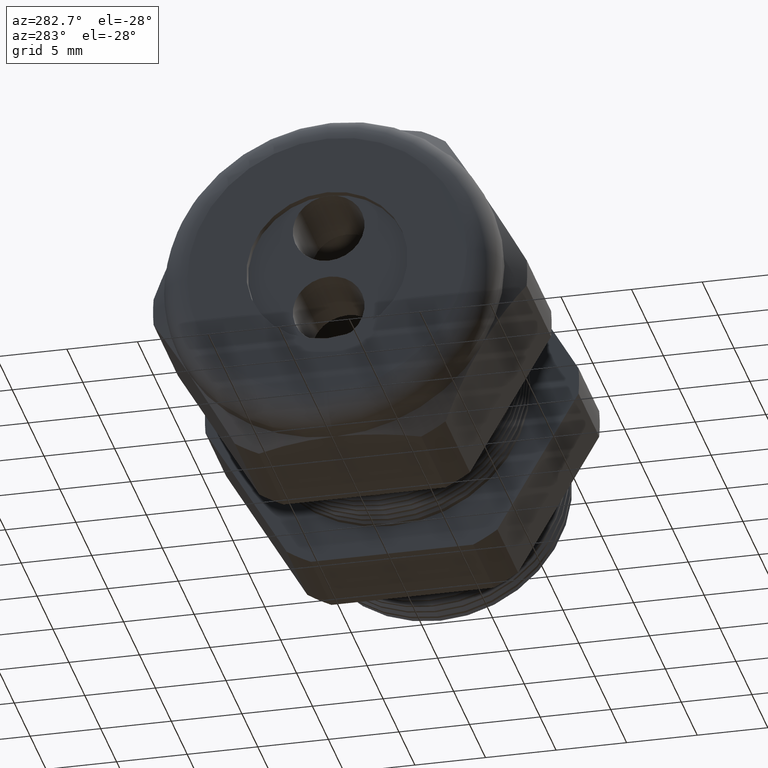
[diagram: clean part render]
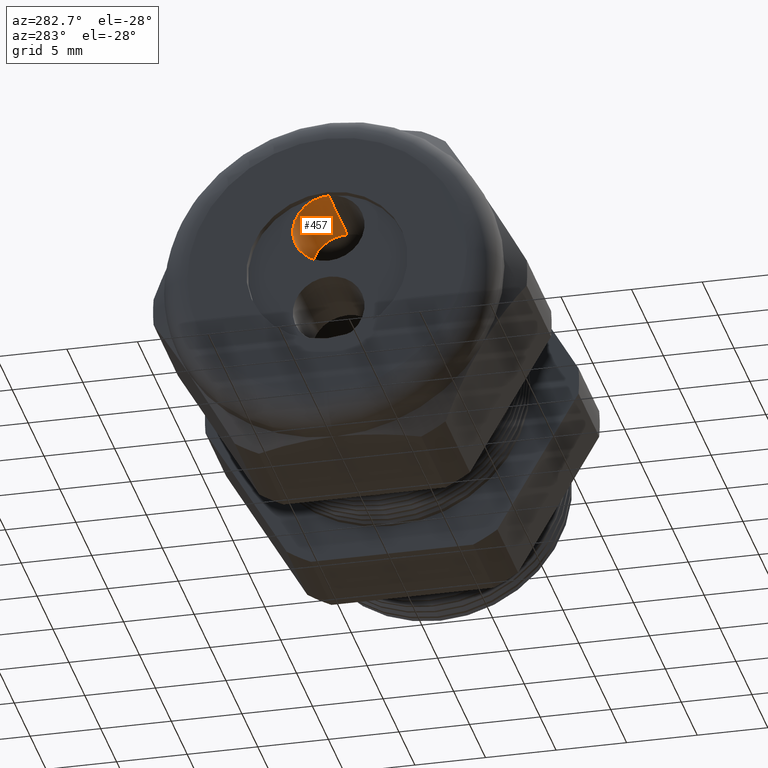
[diagram: same view with one face highlighted and labeled with its STEP entity id]
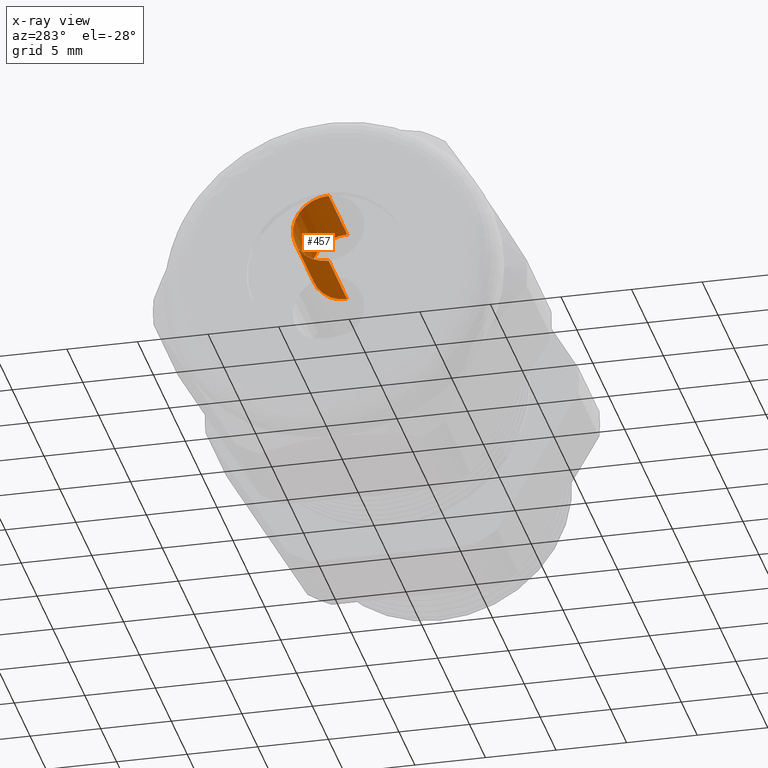
[diagram: x-ray of the same camera — body ghosted, the highlighted face saturated]
A machine part, auxiliary view. The second image highlights one B-rep face of the part: STEP entity #457.
The next image is the same camera in x-ray: the body ghosted, the highlighted face saturated — about 0% of this face is hidden behind the body in this view.
In plain terms, the highlighted cylindrical surface (partial cylindrical patch) has radius 2.54 mm, axis along (-1, 0, 0).
Its self-contained STEP definition (entity closure, byte-faithful):
#36 = EDGE_CURVE ( 'NONE', #1117, #1133, #1240, .T. ) ;
#457 = ADVANCED_FACE ( 'NONE', ( #1898 ), #1897, .F. ) ;
#458 = ORIENTED_EDGE ( 'NONE', *, *, #1127, .F. ) ;
#459 = EDGE_LOOP ( 'NONE', ( #458, #496, #500, #497 ) ) ;
#496 = ORIENTED_EDGE ( 'NONE', *, *, #4309, .F. ) ;
#497 = ORIENTED_EDGE ( 'NONE', *, *, #36, .T. ) ;
#500 = ORIENTED_EDGE ( 'NONE', *, *, #1130, .T. ) ;
#1117 = VERTEX_POINT ( 'NONE', #3020 ) ;
#1122 = VERTEX_POINT ( 'NONE', #3076 ) ;
#1127 = EDGE_CURVE ( 'NONE', #1122, #1133, #3070, .T. ) ;
#1130 = EDGE_CURVE ( 'NONE', #1135, #1117, #3061, .T. ) ;
#1133 = VERTEX_POINT ( 'NONE', #3055 ) ;
#1135 = VERTEX_POINT ( 'NONE', #3114 ) ;
#1236 = DIRECTION ( 'NONE',  ( 0.0000000000000000000, -6.982966722218764100E-015, -1.000000000000000000 ) ) ;
#1237 = DIRECTION ( 'NONE',  ( -1.000000000000000000, 0.0000000000000000000, 0.0000000000000000000 ) ) ;
#1238 = CARTESIAN_POINT ( 'NONE',  ( -1.350000000000000100, 8.700776535884579100E-016, 0.1245999999999999900 ) ) ;
#1239 = AXIS2_PLACEMENT_3D ( 'NONE', #1238, #1237, #1236 ) ;
#1240 = CIRCLE ( 'NONE', #1239, 0.1000000000000000100 ) ;
#1893 = DIRECTION ( 'NONE',  ( 0.0000000000000000000, 0.0000000000000000000, 1.000000000000000000 ) ) ;
#1894 = DIRECTION ( 'NONE',  ( -1.000000000000000000, 0.0000000000000000000, 0.0000000000000000000 ) ) ;
#1895 = AXIS2_PLACEMENT_3D ( 'NONE', #1903, #1894, #1893 ) ;
#1897 = CYLINDRICAL_SURFACE ( 'NONE', #1895, 0.09999999999999999200 ) ;
#1898 = FACE_OUTER_BOUND ( 'NONE', #459, .T. ) ;
#1903 = CARTESIAN_POINT ( 'NONE',  ( -1.120000000000000100, 8.700776535884579100E-016, 0.1245999999999999900 ) ) ;
#3020 = CARTESIAN_POINT ( 'NONE',  ( -1.350000000000000100, 8.700776535884579100E-016, 0.2245999999999999700 ) ) ;
#3055 = CARTESIAN_POINT ( 'NONE',  ( -1.350000000000000100, 8.823241215799313700E-016, 0.02459999999999997600 ) ) ;
#3058 = DIRECTION ( 'NONE',  ( -1.000000000000000000, 0.0000000000000000000, 0.0000000000000000000 ) ) ;
#3059 = VECTOR ( 'NONE', #3058, 39.37007874015748100 ) ;
#3060 = CARTESIAN_POINT ( 'NONE',  ( -1.120000000000000100, 8.700776535884579100E-016, 0.2245999999999999700 ) ) ;
#3061 = LINE ( 'NONE', #3060, #3059 ) ;
#3067 = DIRECTION ( 'NONE',  ( -1.000000000000000000, 0.0000000000000000000, 0.0000000000000000000 ) ) ;
#3068 = VECTOR ( 'NONE', #3067, 39.37007874015748100 ) ;
#3069 = CARTESIAN_POINT ( 'NONE',  ( -1.120000000000000100, 8.823241215799313700E-016, 0.02459999999999997600 ) ) ;
#3070 = LINE ( 'NONE', #3069, #3068 ) ;
#3076 = CARTESIAN_POINT ( 'NONE',  ( -1.120000000000000100, 8.823241215799313700E-016, 0.02459999999999997600 ) ) ;
#3114 = CARTESIAN_POINT ( 'NONE',  ( -1.120000000000000100, 8.700776535884579100E-016, 0.2245999999999999700 ) ) ;
#3115 = DIRECTION ( 'NONE',  ( 0.0000000000000000000, -6.982966722218764100E-015, -1.000000000000000000 ) ) ;
#3116 = DIRECTION ( 'NONE',  ( -1.000000000000000000, 0.0000000000000000000, 0.0000000000000000000 ) ) ;
#3117 = CARTESIAN_POINT ( 'NONE',  ( -1.120000000000000100, 8.700776535884579100E-016, 0.1245999999999999900 ) ) ;
#3118 = AXIS2_PLACEMENT_3D ( 'NONE', #3117, #3116, #3115 ) ;
#3119 = CIRCLE ( 'NONE', #3118, 0.1000000000000000100 ) ;
#4309 = EDGE_CURVE ( 'NONE', #1135, #1122, #3119, .T. ) ;